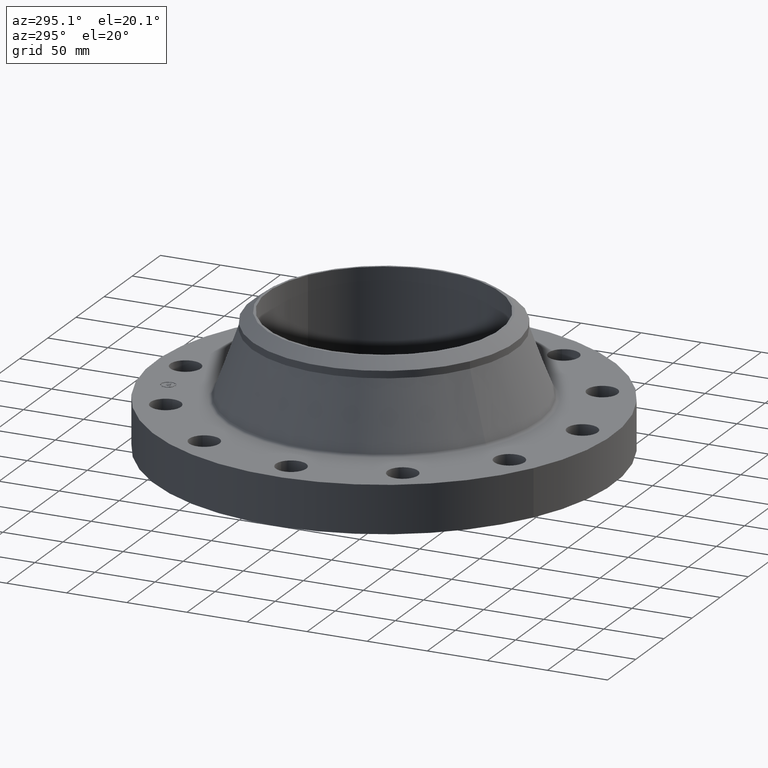
[diagram: clean part render]
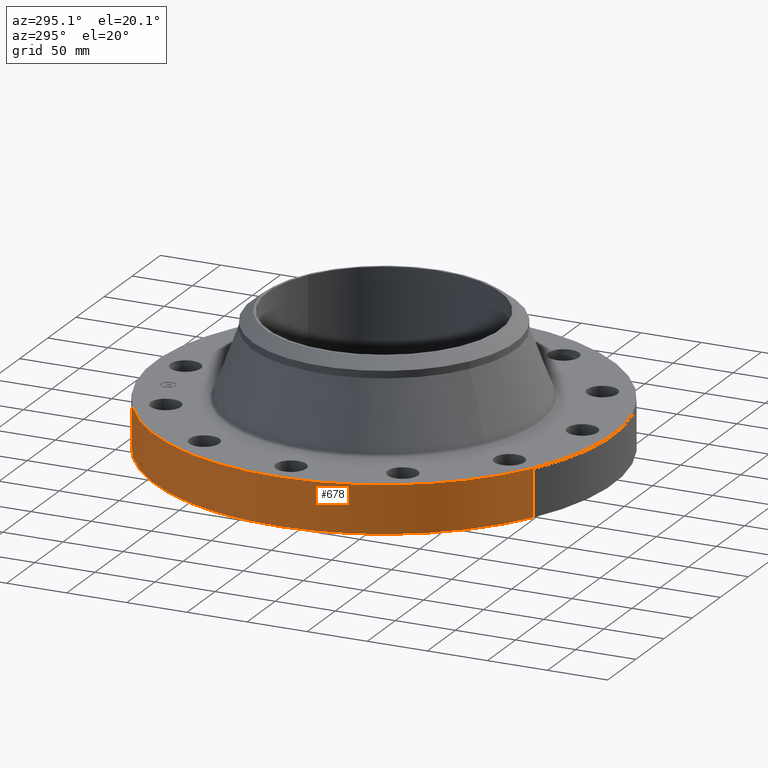
[diagram: same view with one face highlighted and labeled with its STEP entity id]
A machine part, auxiliary view. The second image highlights one B-rep face of the part: STEP entity #678.
In plain terms, the highlighted cylindrical surface (partial cylindrical patch) has radius 190.5 mm, axis along (0, 0, -1).
Its self-contained STEP definition (entity closure, byte-faithful):
#143=AXIS2_PLACEMENT_3D('Circle Axis2P3D',#141,#142,$) ;
#404=AXIS2_PLACEMENT_3D('Circle Axis2P3D',#402,#403,$) ;
#660=AXIS2_PLACEMENT_3D('Cylinder Axis2P3D',#657,#658,#659) ;
#141=CARTESIAN_POINT('Axis2P3D Location',(1.28121485424E-011,-2.36649894781E-011,0.)) ;
#145=CARTESIAN_POINT('Vertex',(-3.59569153955,-6.5818692142,-1.37020054096E-011)) ;
#147=CARTESIAN_POINT('Vertex',(3.59569153955,6.5818692142,-1.37020054096E-011)) ;
#397=CARTESIAN_POINT('Vertex',(3.59569153955,6.5818692142,1.55999999998)) ;
#399=CARTESIAN_POINT('Vertex',(-3.59569153955,-6.5818692142,1.55999999998)) ;
#402=CARTESIAN_POINT('Axis2P3D Location',(1.28121485424E-011,-1.36647998254E-011,1.56000000001)) ;
#657=CARTESIAN_POINT('Axis2P3D Location',(0.,0.,2.00350000001)) ;
#662=CARTESIAN_POINT('Line Origine',(-3.59569153955,-6.5818692142,0.779999999983)) ;
#667=CARTESIAN_POINT('Line Origine',(3.59569153955,6.5818692142,0.779999999983)) ;
#142=DIRECTION('Axis2P3D Direction',(0.,0.,-0.0393700787402)) ;
#403=DIRECTION('Axis2P3D Direction',(0.,0.,-0.0393700787402)) ;
#658=DIRECTION('Axis2P3D Direction',(0.,0.,-0.0393700787402)) ;
#659=DIRECTION('Axis2P3D XDirection',(-0.0188750212049,-0.0345504945626,0.)) ;
#663=DIRECTION('Vector Direction',(0.,0.,-0.0393700787402)) ;
#668=DIRECTION('Vector Direction',(0.,0.,-0.0393700787402)) ;
#664=VECTOR('Line Direction',#663,0.0393700787402) ;
#669=VECTOR('Line Direction',#668,0.0393700787402) ;
#673=ORIENTED_EDGE('',*,*,#149,.F.) ;
#674=ORIENTED_EDGE('',*,*,#666,.T.) ;
#675=ORIENTED_EDGE('',*,*,#406,.T.) ;
#676=ORIENTED_EDGE('',*,*,#671,.F.) ;
#678=ADVANCED_FACE('PartBody',(#677),#661,.T.) ;
#144=CIRCLE('generated circle',#143,7.50000000003) ;
#405=CIRCLE('generated circle',#404,7.50000000003) ;
#661=CYLINDRICAL_SURFACE('generated cylinder',#660,7.50000000003) ;
#149=EDGE_CURVE('',#146,#148,#144,.T.) ;
#406=EDGE_CURVE('',#400,#398,#405,.T.) ;
#666=EDGE_CURVE('',#146,#400,#665,.F.) ;
#671=EDGE_CURVE('',#148,#398,#670,.F.) ;
#672=EDGE_LOOP('',(#673,#674,#675,#676)) ;
#677=FACE_OUTER_BOUND('',#672,.T.) ;
#665=LINE('Line',#662,#664) ;
#670=LINE('Line',#667,#669) ;
#146=VERTEX_POINT('',#145) ;
#148=VERTEX_POINT('',#147) ;
#398=VERTEX_POINT('',#397) ;
#400=VERTEX_POINT('',#399) ;